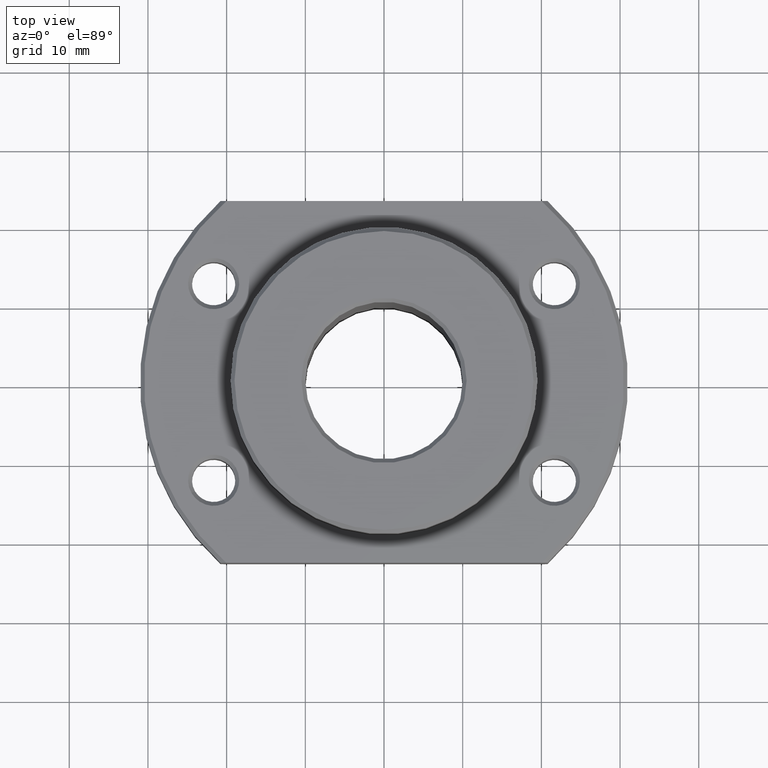
[diagram: clean part render]
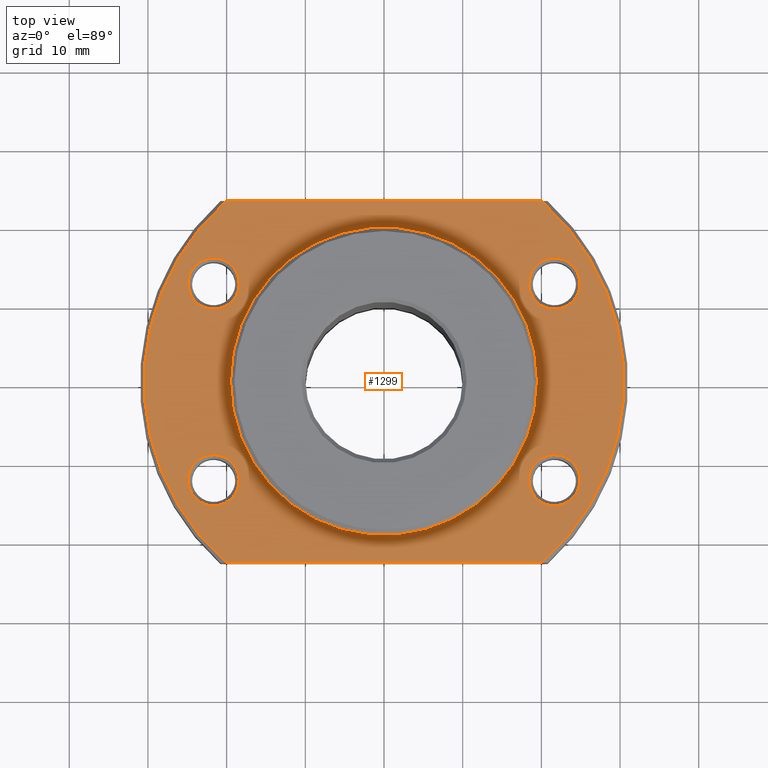
[diagram: same view with one face highlighted and labeled with its STEP entity id]
A machine part, top view. The second image highlights one B-rep face of the part: STEP entity #1299.
In plain terms, the highlighted planar face has unit normal (0, 0, 1).
Its self-contained STEP definition (entity closure, byte-faithful):
#239=AXIS2_PLACEMENT_3D('Circle Axis2P3D',#237,#238,$) ;
#265=AXIS2_PLACEMENT_3D('Circle Axis2P3D',#263,#264,$) ;
#566=AXIS2_PLACEMENT_3D('Circle Axis2P3D',#564,#565,$) ;
#590=AXIS2_PLACEMENT_3D('Circle Axis2P3D',#588,#589,$) ;
#719=AXIS2_PLACEMENT_3D('Circle Axis2P3D',#717,#718,$) ;
#743=AXIS2_PLACEMENT_3D('Circle Axis2P3D',#741,#742,$) ;
#872=AXIS2_PLACEMENT_3D('Circle Axis2P3D',#870,#871,$) ;
#896=AXIS2_PLACEMENT_3D('Circle Axis2P3D',#894,#895,$) ;
#1025=AXIS2_PLACEMENT_3D('Circle Axis2P3D',#1023,#1024,$) ;
#1049=AXIS2_PLACEMENT_3D('Circle Axis2P3D',#1047,#1048,$) ;
#1066=AXIS2_PLACEMENT_3D('Circle Axis2P3D',#1064,#1065,$) ;
#1252=AXIS2_PLACEMENT_3D('Plane Axis2P3D',#1249,#1250,#1251) ;
#1270=AXIS2_PLACEMENT_3D('Circle Axis2P3D',#1268,#1269,$) ;
#232=CARTESIAN_POINT('Vertex',(19.5,0.,41.2)) ;
#237=CARTESIAN_POINT('Axis2P3D Location',(0.,0.,41.2)) ;
#241=CARTESIAN_POINT('Vertex',(-19.5,2.38798238995E-015,41.2)) ;
#263=CARTESIAN_POINT('Axis2P3D Location',(0.,0.,41.2)) ;
#561=CARTESIAN_POINT('Vertex',(-24.4652176485,14.1250000146,41.2)) ;
#564=CARTESIAN_POINT('Axis2P3D Location',(-21.6506350946,12.5,41.2)) ;
#568=CARTESIAN_POINT('Vertex',(-18.8360525323,10.875,41.2)) ;
#588=CARTESIAN_POINT('Axis2P3D Location',(-21.6506350946,12.5,41.2)) ;
#714=CARTESIAN_POINT('Vertex',(-24.4652176654,-14.1249999854,41.2)) ;
#717=CARTESIAN_POINT('Axis2P3D Location',(-21.6506350946,-12.5,41.2)) ;
#721=CARTESIAN_POINT('Vertex',(-18.8360525323,-10.875,41.2)) ;
#741=CARTESIAN_POINT('Axis2P3D Location',(-21.6506350946,-12.5,41.2)) ;
#867=CARTESIAN_POINT('Vertex',(24.4652176485,-14.1250000146,41.2)) ;
#870=CARTESIAN_POINT('Axis2P3D Location',(21.6506350946,-12.5,41.2)) ;
#874=CARTESIAN_POINT('Vertex',(18.8360525323,-10.875,41.2)) ;
#894=CARTESIAN_POINT('Axis2P3D Location',(21.6506350946,-12.5,41.2)) ;
#1020=CARTESIAN_POINT('Vertex',(24.4652176654,14.1249999854,41.2)) ;
#1023=CARTESIAN_POINT('Axis2P3D Location',(21.6506350946,12.5,41.2)) ;
#1027=CARTESIAN_POINT('Vertex',(18.8360525323,10.875,41.2)) ;
#1047=CARTESIAN_POINT('Axis2P3D Location',(21.6506350946,12.5,41.2)) ;
#1064=CARTESIAN_POINT('Axis2P3D Location',(-7.10542735761E-015,7.4408398438E-016,41.2)) ;
#1068=CARTESIAN_POINT('Vertex',(20.031225624,-23.,41.2)) ;
#1070=CARTESIAN_POINT('Vertex',(20.031225624,23.,41.2)) ;
#1249=CARTESIAN_POINT('Axis2P3D Location',(0.,0.,41.2)) ;
#1254=CARTESIAN_POINT('Line Origine',(0.,-23.,41.2)) ;
#1258=CARTESIAN_POINT('Vertex',(-20.031225624,-23.,41.2)) ;
#1261=CARTESIAN_POINT('Line Origine',(7.1054273576E-015,23.,41.2)) ;
#1265=CARTESIAN_POINT('Vertex',(-20.031225624,23.,41.2)) ;
#1268=CARTESIAN_POINT('Axis2P3D Location',(0.,-3.2528167469E-015,41.2)) ;
#238=DIRECTION('Axis2P3D Direction',(0.,0.,1.)) ;
#264=DIRECTION('Axis2P3D Direction',(0.,0.,1.)) ;
#565=DIRECTION('Axis2P3D Direction',(1.42101868213E-013,1.21303392816E-013,1.)) ;
#589=DIRECTION('Axis2P3D Direction',(4.44410176382E-013,7.69741004894E-013,1.)) ;
#718=DIRECTION('Axis2P3D Direction',(-3.59732315955E-014,1.9437261636E-013,1.)) ;
#742=DIRECTION('Axis2P3D Direction',(-4.43986689796E-013,7.69007504612E-013,1.)) ;
#871=DIRECTION('Axis2P3D Direction',(-1.52076775977E-013,-1.29818341775E-013,1.)) ;
#895=DIRECTION('Axis2P3D Direction',(-4.45948546531E-013,-7.72405540153E-013,1.)) ;
#1024=DIRECTION('Axis2P3D Direction',(3.59732315955E-014,-1.9437261636E-013,1.)) ;
#1048=DIRECTION('Axis2P3D Direction',(4.43986689796E-013,-7.69007504612E-013,1.)) ;
#1065=DIRECTION('Axis2P3D Direction',(-5.08926368919E-015,6.96699009725E-015,1.)) ;
#1250=DIRECTION('Axis2P3D Direction',(0.,0.,1.)) ;
#1251=DIRECTION('Axis2P3D XDirection',(1.,0.,0.)) ;
#1255=DIRECTION('Vector Direction',(1.,0.,0.)) ;
#1262=DIRECTION('Vector Direction',(1.,0.,0.)) ;
#1269=DIRECTION('Axis2P3D Direction',(0.,0.,1.)) ;
#1256=VECTOR('Line Direction',#1255,1.) ;
#1263=VECTOR('Line Direction',#1262,1.) ;
#1274=ORIENTED_EDGE('',*,*,#1260,.T.) ;
#1275=ORIENTED_EDGE('',*,*,#1072,.T.) ;
#1276=ORIENTED_EDGE('',*,*,#1267,.T.) ;
#1277=ORIENTED_EDGE('',*,*,#1272,.T.) ;
#1280=ORIENTED_EDGE('',*,*,#1051,.F.) ;
#1281=ORIENTED_EDGE('',*,*,#1029,.F.) ;
#1284=ORIENTED_EDGE('',*,*,#898,.F.) ;
#1285=ORIENTED_EDGE('',*,*,#876,.F.) ;
#1288=ORIENTED_EDGE('',*,*,#745,.F.) ;
#1289=ORIENTED_EDGE('',*,*,#723,.F.) ;
#1292=ORIENTED_EDGE('',*,*,#592,.F.) ;
#1293=ORIENTED_EDGE('',*,*,#570,.F.) ;
#1296=ORIENTED_EDGE('',*,*,#243,.F.) ;
#1297=ORIENTED_EDGE('',*,*,#267,.F.) ;
#1282=FACE_BOUND('',#1279,.T.) ;
#1286=FACE_BOUND('',#1283,.T.) ;
#1290=FACE_BOUND('',#1287,.T.) ;
#1294=FACE_BOUND('',#1291,.T.) ;
#1298=FACE_BOUND('',#1295,.T.) ;
#1299=ADVANCED_FACE('',(#1278,#1282,#1286,#1290,#1294,#1298),#1253,.T.) ;
#240=CIRCLE('generated circle',#239,19.5) ;
#266=CIRCLE('generated circle',#265,19.5) ;
#567=CIRCLE('generated circle',#566,3.25) ;
#591=CIRCLE('generated circle',#590,3.25) ;
#720=CIRCLE('generated circle',#719,3.25) ;
#744=CIRCLE('generated circle',#743,3.25) ;
#873=CIRCLE('generated circle',#872,3.25) ;
#897=CIRCLE('generated circle',#896,3.25) ;
#1026=CIRCLE('generated circle',#1025,3.25) ;
#1050=CIRCLE('generated circle',#1049,3.25) ;
#1067=CIRCLE('generated circle',#1066,30.5) ;
#1271=CIRCLE('generated circle',#1270,30.5) ;
#243=EDGE_CURVE('',#233,#242,#240,.T.) ;
#267=EDGE_CURVE('',#242,#233,#266,.T.) ;
#570=EDGE_CURVE('',#562,#569,#567,.T.) ;
#592=EDGE_CURVE('',#569,#562,#591,.T.) ;
#723=EDGE_CURVE('',#715,#722,#720,.T.) ;
#745=EDGE_CURVE('',#722,#715,#744,.T.) ;
#876=EDGE_CURVE('',#868,#875,#873,.T.) ;
#898=EDGE_CURVE('',#875,#868,#897,.T.) ;
#1029=EDGE_CURVE('',#1021,#1028,#1026,.T.) ;
#1051=EDGE_CURVE('',#1028,#1021,#1050,.T.) ;
#1072=EDGE_CURVE('',#1069,#1071,#1067,.T.) ;
#1260=EDGE_CURVE('',#1259,#1069,#1257,.T.) ;
#1267=EDGE_CURVE('',#1071,#1266,#1264,.F.) ;
#1272=EDGE_CURVE('',#1266,#1259,#1271,.T.) ;
#1273=EDGE_LOOP('',(#1274,#1275,#1276,#1277)) ;
#1279=EDGE_LOOP('',(#1280,#1281)) ;
#1283=EDGE_LOOP('',(#1284,#1285)) ;
#1287=EDGE_LOOP('',(#1288,#1289)) ;
#1291=EDGE_LOOP('',(#1292,#1293)) ;
#1295=EDGE_LOOP('',(#1296,#1297)) ;
#1278=FACE_OUTER_BOUND('',#1273,.T.) ;
#1257=LINE('Line',#1254,#1256) ;
#1264=LINE('Line',#1261,#1263) ;
#1253=PLANE('Plane',#1252) ;
#233=VERTEX_POINT('',#232) ;
#242=VERTEX_POINT('',#241) ;
#562=VERTEX_POINT('',#561) ;
#569=VERTEX_POINT('',#568) ;
#715=VERTEX_POINT('',#714) ;
#722=VERTEX_POINT('',#721) ;
#868=VERTEX_POINT('',#867) ;
#875=VERTEX_POINT('',#874) ;
#1021=VERTEX_POINT('',#1020) ;
#1028=VERTEX_POINT('',#1027) ;
#1069=VERTEX_POINT('',#1068) ;
#1071=VERTEX_POINT('',#1070) ;
#1259=VERTEX_POINT('',#1258) ;
#1266=VERTEX_POINT('',#1265) ;